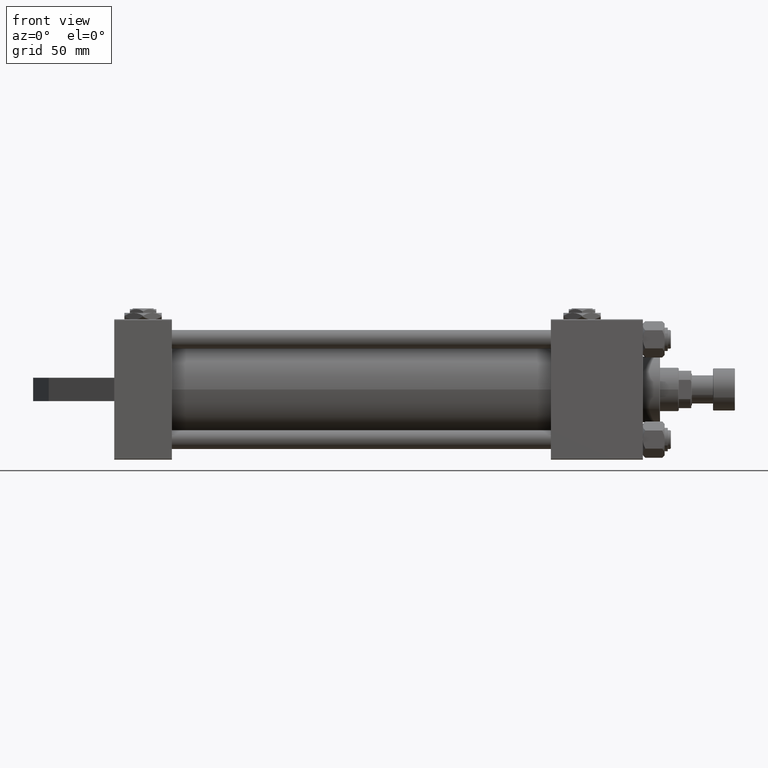
[diagram: clean part render]
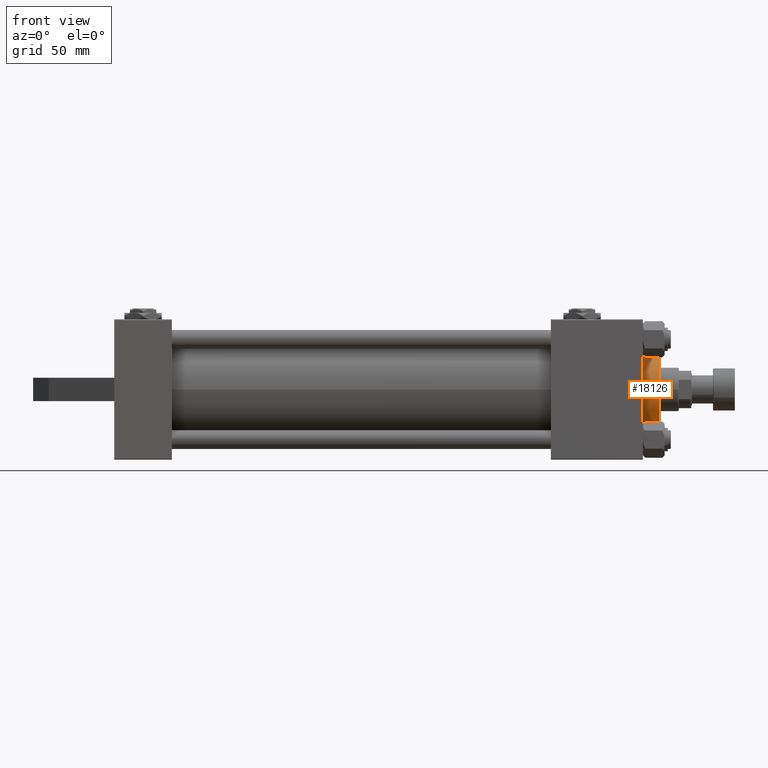
[diagram: same view with one face highlighted and labeled with its STEP entity id]
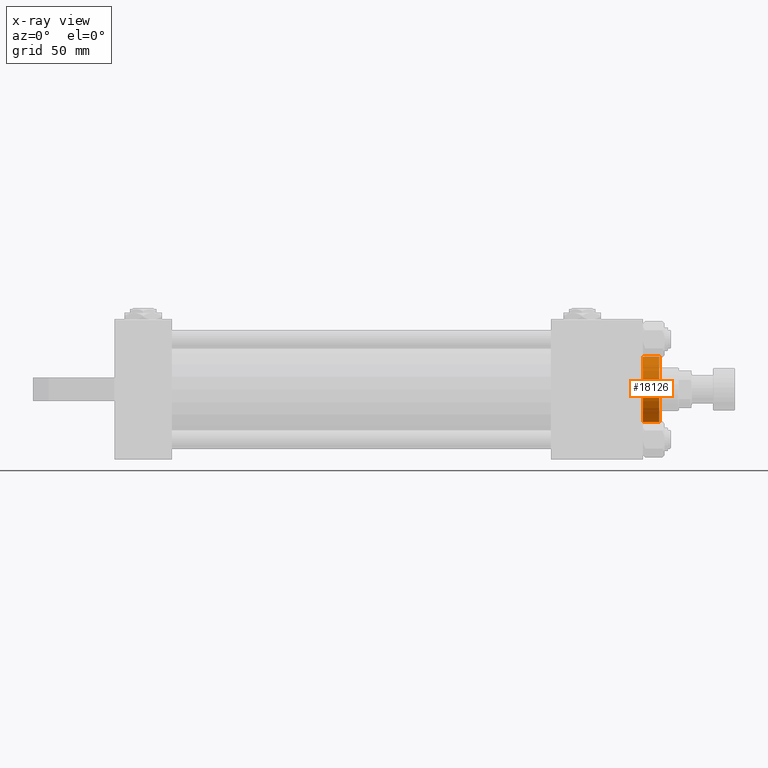
[diagram: x-ray of the same camera — body ghosted, the highlighted face saturated]
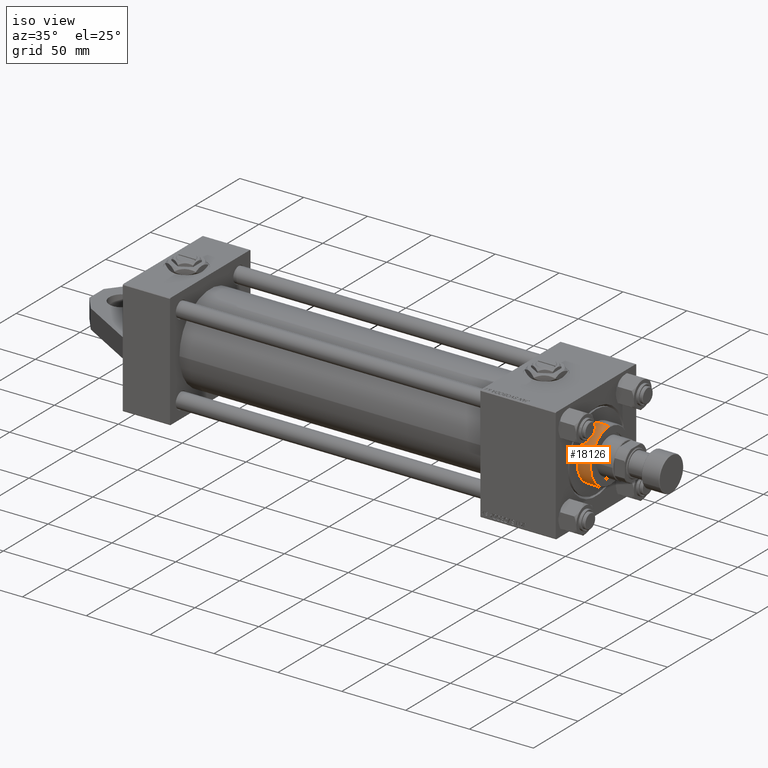
[diagram: same view with one face highlighted and labeled with its STEP entity id]
A machine part, front view. The second image highlights one B-rep face of the part: STEP entity #18126.
The next image is the same camera in x-ray: the body ghosted, the highlighted face saturated — about 0% of this face is hidden behind the body in this view.
A second angle (iso view) of the same face is appended — the face is thin or edge-on in the first view.
In plain terms, the highlighted cylindrical surface (edge-blend (fillet) strip) has radius 21 mm, axis along (-1, -0, -0).
Its self-contained STEP definition (entity closure, byte-faithful):
#1 = CARTESIAN_POINT ( 'NONE',  ( 21.00000000000000000, 2.571758278209441661E-15, 39.69999999999999574 ) ) ;
#587 = AXIS2_PLACEMENT_3D ( 'NONE', #12551, #4690, #5669 ) ;
#1523 = VECTOR ( 'NONE', #42764, 1000.000000000000000 ) ;
#3535 = ORIENTED_EDGE ( 'NONE', *, *, #44696, .T. ) ;
#4690 = DIRECTION ( 'NONE',  ( 0.000000000000000000, 0.000000000000000000, -1.000000000000000000 ) ) ;
#5669 = DIRECTION ( 'NONE',  ( 1.000000000000000000, 0.000000000000000000, 0.000000000000000000 ) ) ;
#6050 = ORIENTED_EDGE ( 'NONE', *, *, #18700, .T. ) ;
#7282 = DIRECTION ( 'NONE',  ( 0.000000000000000000, 0.000000000000000000, 1.000000000000000000 ) ) ;
#9915 = ORIENTED_EDGE ( 'NONE', *, *, #12121, .F. ) ;
#12121 = EDGE_CURVE ( 'NONE', #48057, #31721, #32958, .T. ) ;
#12551 = CARTESIAN_POINT ( 'NONE',  ( 0.000000000000000000, 0.000000000000000000, 39.19999999999999574 ) ) ;
#13404 = CIRCLE ( 'NONE', #17311, 21.00000000000000000 ) ;
#13448 = CARTESIAN_POINT ( 'NONE',  ( -21.00000000000000000, 0.000000000000000000, 39.19999999999999574 ) ) ;
#16531 = CARTESIAN_POINT ( 'NONE',  ( 21.00000000000000000, 2.571758278209441661E-15, 39.19999999999999574 ) ) ;
#17311 = AXIS2_PLACEMENT_3D ( 'NONE', #40959, #7282, #37268 ) ;
#17344 = DIRECTION ( 'NONE',  ( -0.000000000000000000, -0.000000000000000000, -1.000000000000000000 ) ) ;
#18126 = ADVANCED_FACE ( 'NONE', ( #47076 ), #43645, .T. ) ;
#18700 = EDGE_CURVE ( 'NONE', #48057, #37040, #20236, .T. ) ;
#20236 = CIRCLE ( 'NONE', #587, 21.00000000000000000 ) ;
#20800 = VECTOR ( 'NONE', #25584, 1000.000000000000000 ) ;
#21989 = DIRECTION ( 'NONE',  ( -1.000000000000000000, 0.000000000000000000, 0.000000000000000000 ) ) ;
#23345 = LINE ( 'NONE', #34898, #1523 ) ;
#25584 = DIRECTION ( 'NONE',  ( -0.000000000000000000, -0.000000000000000000, -1.000000000000000000 ) ) ;
#25675 = CARTESIAN_POINT ( 'NONE',  ( 0.000000000000000000, 0.000000000000000000, 39.69999999999999574 ) ) ;
#25730 = AXIS2_PLACEMENT_3D ( 'NONE', #25675, #17344, #21989 ) ;
#31721 = VERTEX_POINT ( 'NONE', #34843 ) ;
#32958 = LINE ( 'NONE', #1, #20800 ) ;
#34843 = CARTESIAN_POINT ( 'NONE',  ( 21.00000000000000000, 2.571758278209441661E-15, 28.69999999999999929 ) ) ;
#34898 = CARTESIAN_POINT ( 'NONE',  ( -21.00000000000000000, 0.000000000000000000, 39.69999999999999574 ) ) ;
#36221 = ORIENTED_EDGE ( 'NONE', *, *, #41675, .T. ) ;
#37040 = VERTEX_POINT ( 'NONE', #13448 ) ;
#37268 = DIRECTION ( 'NONE',  ( 1.000000000000000000, 0.000000000000000000, 0.000000000000000000 ) ) ;
#40959 = CARTESIAN_POINT ( 'NONE',  ( 0.000000000000000000, 0.000000000000000000, 28.69999999999999929 ) ) ;
#41482 = EDGE_LOOP ( 'NONE', ( #9915, #6050, #36221, #3535 ) ) ;
#41675 = EDGE_CURVE ( 'NONE', #37040, #45424, #23345, .T. ) ;
#42764 = DIRECTION ( 'NONE',  ( -0.000000000000000000, -0.000000000000000000, -1.000000000000000000 ) ) ;
#43645 = CYLINDRICAL_SURFACE ( 'NONE', #25730, 21.00000000000000000 ) ;
#44696 = EDGE_CURVE ( 'NONE', #45424, #31721, #13404, .T. ) ;
#45424 = VERTEX_POINT ( 'NONE', #46229 ) ;
#46229 = CARTESIAN_POINT ( 'NONE',  ( -21.00000000000000000, 0.000000000000000000, 28.69999999999999929 ) ) ;
#47076 = FACE_OUTER_BOUND ( 'NONE', #41482, .T. ) ;
#48057 = VERTEX_POINT ( 'NONE', #16531 ) ;